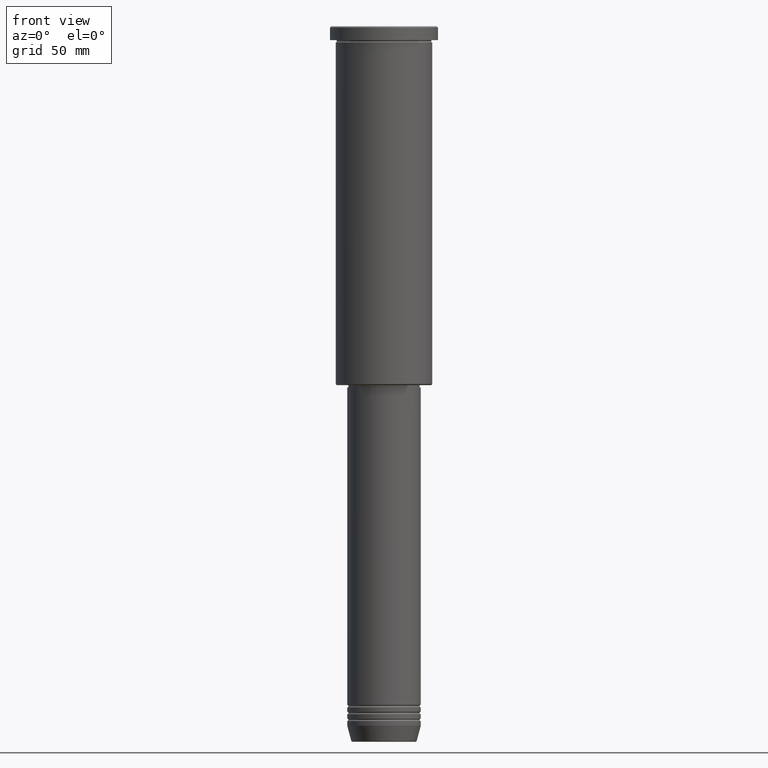
[diagram: clean part render]
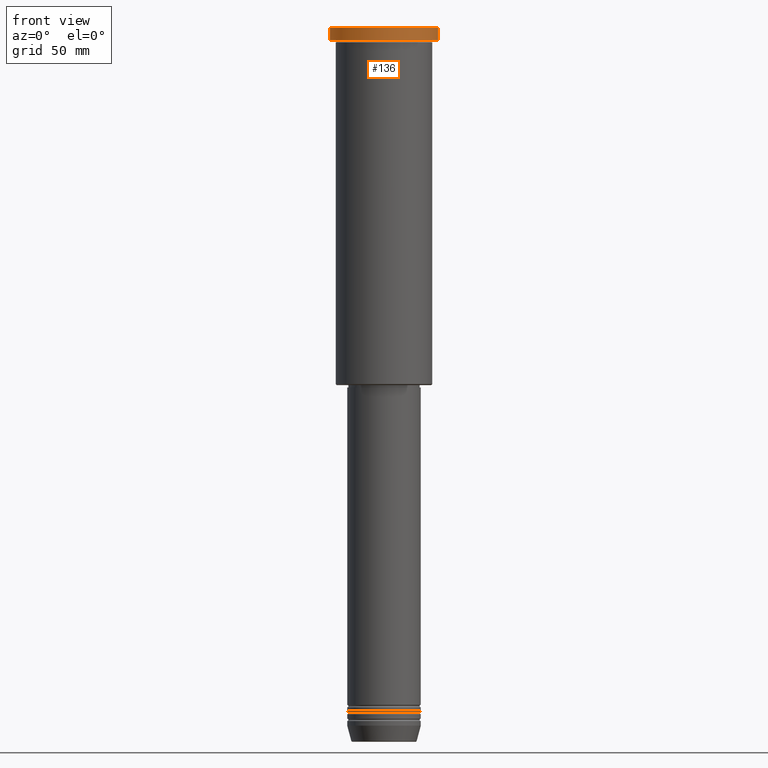
[diagram: same view with one face highlighted and labeled with its STEP entity id]
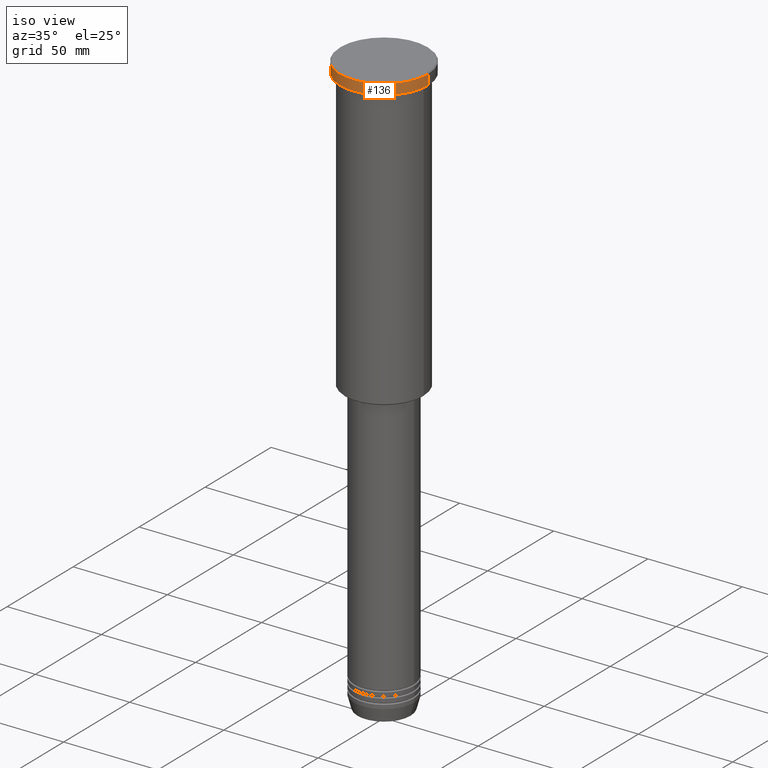
[diagram: same view with one face highlighted and labeled with its STEP entity id]
A machine part, front view. The second image highlights one B-rep face of the part: STEP entity #136.
A second angle (iso view) of the same face is appended — the face is thin or edge-on in the first view.
In plain terms, the highlighted cylindrical surface (partial cylindrical patch) has radius 23.5 mm, axis along (-0, -0, 1).
Its self-contained STEP definition (entity closure, byte-faithful):
#23 = DIRECTION ( 'NONE',  ( -0.000000000000000000, -0.000000000000000000, 1.000000000000000000 ) ) ;
#47 = VERTEX_POINT ( 'NONE', #1016 ) ;
#67 = EDGE_LOOP ( 'NONE', ( #634, #393, #742, #724 ) ) ;
#104 = VERTEX_POINT ( 'NONE', #240 ) ;
#107 = DIRECTION ( 'NONE',  ( 1.000000000000000000, 0.000000000000000000, 0.000000000000000000 ) ) ;
#132 = CARTESIAN_POINT ( 'NONE',  ( 0.000000000000000000, 0.000000000000000000, -0.4999999999999726885 ) ) ;
#136 = ADVANCED_FACE ( 'NONE', ( #1055 ), #841, .T. ) ;
#169 = CIRCLE ( 'NONE', #1088, 23.50000000000000000 ) ;
#191 = AXIS2_PLACEMENT_3D ( 'NONE', #132, #918, #107 ) ;
#224 = EDGE_CURVE ( 'NONE', #399, #47, #299, .T. ) ;
#226 = CARTESIAN_POINT ( 'NONE',  ( 0.000000000000000000, 0.000000000000000000, 0.000000000000000000 ) ) ;
#237 = DIRECTION ( 'NONE',  ( -0.000000000000000000, -0.000000000000000000, 1.000000000000000000 ) ) ;
#240 = CARTESIAN_POINT ( 'NONE',  ( 23.50000000000000000, 0.000000000000000000, -5.999999999999994671 ) ) ;
#247 = CARTESIAN_POINT ( 'NONE',  ( 23.50000000000000000, 0.000000000000000000, -0.4999999999999726885 ) ) ;
#251 = CARTESIAN_POINT ( 'NONE',  ( 23.50000000000000000, 0.000000000000000000, 0.000000000000000000 ) ) ;
#264 = CARTESIAN_POINT ( 'NONE',  ( -23.50000000000000000, 2.877919977996280320E-15, -5.999999999999994671 ) ) ;
#299 = LINE ( 'NONE', #647, #1122 ) ;
#371 = AXIS2_PLACEMENT_3D ( 'NONE', #226, #23, #1170 ) ;
#393 = ORIENTED_EDGE ( 'NONE', *, *, #988, .T. ) ;
#399 = VERTEX_POINT ( 'NONE', #264 ) ;
#436 = DIRECTION ( 'NONE',  ( -0.000000000000000000, -0.000000000000000000, 1.000000000000000000 ) ) ;
#499 = CIRCLE ( 'NONE', #191, 23.50000000000000000 ) ;
#586 = EDGE_CURVE ( 'NONE', #704, #47, #499, .T. ) ;
#634 = ORIENTED_EDGE ( 'NONE', *, *, #224, .F. ) ;
#638 = EDGE_CURVE ( 'NONE', #104, #704, #680, .T. ) ;
#647 = CARTESIAN_POINT ( 'NONE',  ( -23.50000000000000000, 2.877919977996280320E-15, 0.000000000000000000 ) ) ;
#657 = CARTESIAN_POINT ( 'NONE',  ( 0.000000000000000000, 0.000000000000000000, -5.999999999999994671 ) ) ;
#659 = DIRECTION ( 'NONE',  ( 1.000000000000000000, 0.000000000000000000, 0.000000000000000000 ) ) ;
#680 = LINE ( 'NONE', #251, #1108 ) ;
#704 = VERTEX_POINT ( 'NONE', #247 ) ;
#724 = ORIENTED_EDGE ( 'NONE', *, *, #586, .T. ) ;
#742 = ORIENTED_EDGE ( 'NONE', *, *, #638, .T. ) ;
#841 = CYLINDRICAL_SURFACE ( 'NONE', #371, 23.50000000000000000 ) ;
#918 = DIRECTION ( 'NONE',  ( 0.000000000000000000, 0.000000000000000000, -1.000000000000000000 ) ) ;
#940 = DIRECTION ( 'NONE',  ( -0.000000000000000000, -0.000000000000000000, 1.000000000000000000 ) ) ;
#988 = EDGE_CURVE ( 'NONE', #399, #104, #169, .T. ) ;
#1016 = CARTESIAN_POINT ( 'NONE',  ( -23.50000000000000000, 2.877919977996280320E-15, -0.4999999999999726885 ) ) ;
#1055 = FACE_OUTER_BOUND ( 'NONE', #67, .T. ) ;
#1088 = AXIS2_PLACEMENT_3D ( 'NONE', #657, #940, #659 ) ;
#1108 = VECTOR ( 'NONE', #436, 1000.000000000000000 ) ;
#1122 = VECTOR ( 'NONE', #237, 1000.000000000000000 ) ;
#1170 = DIRECTION ( 'NONE',  ( 1.000000000000000000, 0.000000000000000000, 0.000000000000000000 ) ) ;